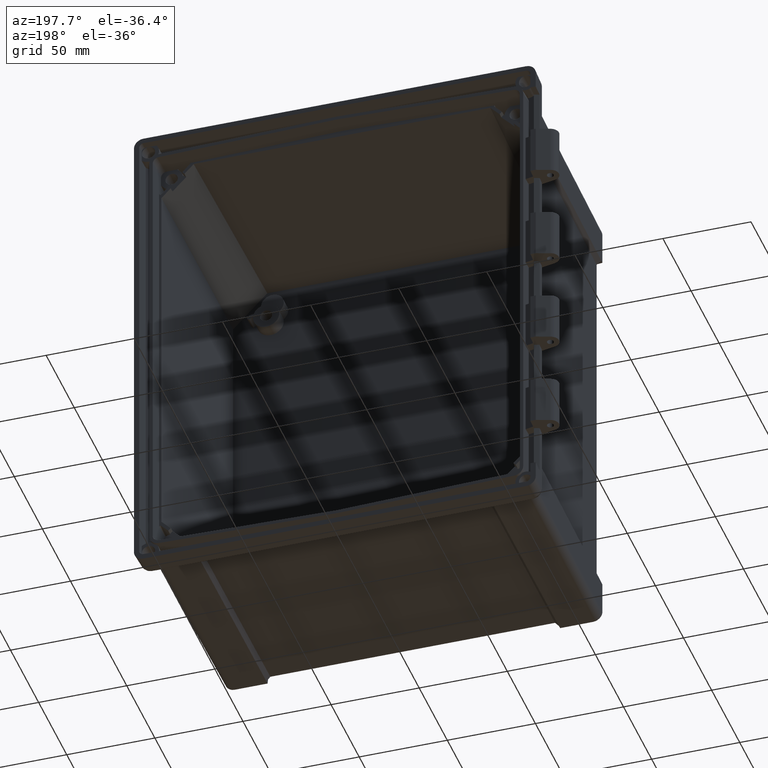
[diagram: clean part render]
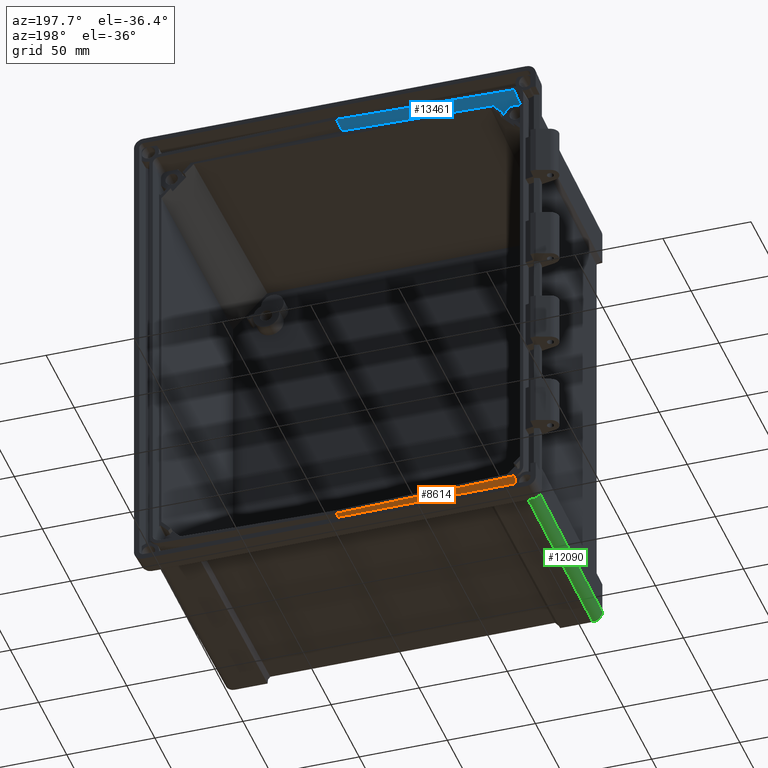
[diagram: same view with three faces highlighted in distinct colors, each labeled with its STEP entity id]
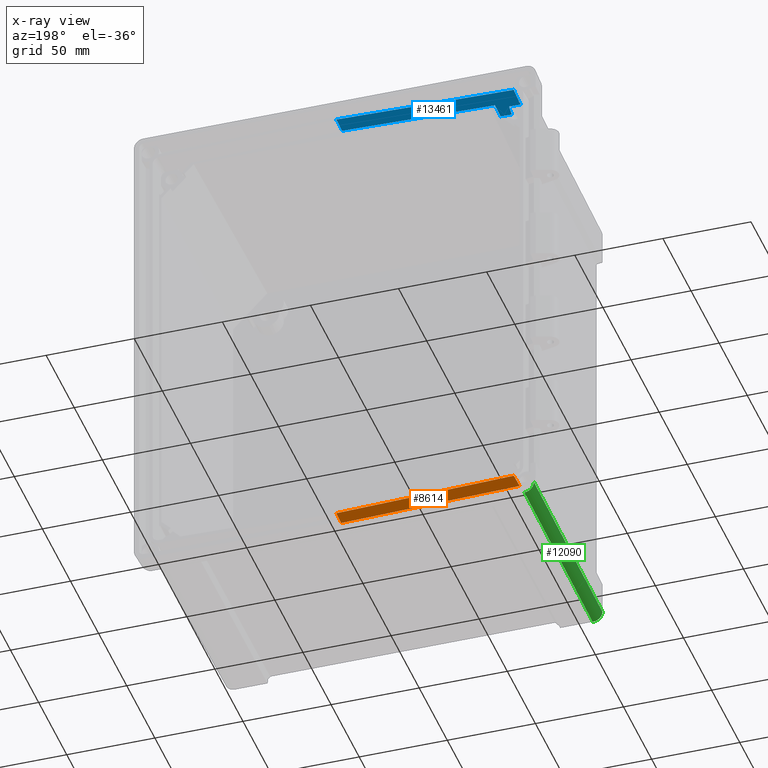
[diagram: x-ray of the same camera — body ghosted, the three highlighted faces saturated]
A machine part, auxiliary view with three faces highlighted in distinct colors.
The next image is the same camera in x-ray (body ghosted, the three faces saturated) — at least one of them is partly hidden behind the body in this view.
Their STEP definitions:

[orange] entity #8614 — the highlighted planar face has unit normal (0.0262, -0.0349, 0.999).
#616=DIRECTION('',(2.723803751602E-9,-9.993904096062E-1,-3.491144779595E-2));
#617=VECTOR('',#616,8.901917632113E0);
#618=CARTESIAN_POINT('',(0.E0,-2.500000001275E0,-1.332099393391E2));
#619=LINE('',#618,#617);
#620=DIRECTION('',(9.996573249814E-1,7.973144582753E-13,-2.617694808592E-2));
#621=VECTOR('',#620,1.007935563406E2);
#622=CARTESIAN_POINT('',(-1.007590169068E2,-2.500000001355E0,
-1.305714716473E2));
#623=LINE('',#622,#621);
#624=DIRECTION('',(3.487934252031E-2,9.988137614788E-1,3.397795382151E-2));
#625=VECTOR('',#624,9.426022756493E0);
#626=CARTESIAN_POINT('',(-1.010877903831E2,-1.191484124655E1,
-1.308917486133E2));
#627=LINE('',#626,#625);
#628=CARTESIAN_POINT('',(-9.926258086126E1,-1.194491344930E1,
-1.309405939103E2));
#629=CARTESIAN_POINT('',(-9.987121601566E1,-1.194827613766E1,
-1.309247737058E2));
#630=CARTESIAN_POINT('',(-1.004796177273E2,-1.193816806697E1,
-1.309084890437E2));
#631=CARTESIAN_POINT('',(-1.010877903633E2,-1.191484124814E1,
-1.308917486130E2));
#633=CARTESIAN_POINT('',(-1.010877903831E2,-1.191484124655E1,
-1.308917486133E2));
#655=DIRECTION('',(-9.996471083360E-1,-5.523015836494E-3,2.598374668104E-2));
#656=VECTOR('',#655,9.929762219294E1);
#657=CARTESIAN_POINT('',(2.424707427432E-8,-1.139649110991E1,
-1.335207181718E2));
#658=LINE('',#657,#656);
#6869=CARTESIAN_POINT('',(-9.926258086556E1,-1.194491344981E1,
-1.309405939107E2));
#6870=VERTEX_POINT('',#6869);
#6871=CARTESIAN_POINT('',(2.424707427432E-8,-1.139649110991E1,
-1.335207181718E2));
#6872=VERTEX_POINT('',#6871);
#6892=VERTEX_POINT('',#633);
#6893=CARTESIAN_POINT('',(-1.007590169068E2,-2.500000001355E0,
-1.305714716473E2));
#6894=VERTEX_POINT('',#6893);
#7530=CARTESIAN_POINT('',(0.E0,-2.500000001275E0,-1.332099393391E2));
#7531=VERTEX_POINT('',#7530);
#8598=CARTESIAN_POINT('',(-5.054389518166E1,-7.177549736724E0,
-1.320498005152E2));
#8599=DIRECTION('',(2.616100201753E-2,-3.489949666754E-2,9.990483607443E-1));
#8600=DIRECTION('',(0.E0,9.993904096908E-1,3.491144537447E-2));
#8601=AXIS2_PLACEMENT_3D('',#8598,#8599,#8600);
#8602=PLANE('',#8601);
#8604=ORIENTED_EDGE('',*,*,#8603,.F.);
#8606=ORIENTED_EDGE('',*,*,#8605,.F.);
#8608=ORIENTED_EDGE('',*,*,#8607,.F.);
#8609=ORIENTED_EDGE('',*,*,#8556,.F.);
#8611=ORIENTED_EDGE('',*,*,#8610,.F.);
#8612=EDGE_LOOP('',(#8604,#8606,#8608,#8609,#8611));
#8613=FACE_OUTER_BOUND('',#8612,.F.);
#8614=ADVANCED_FACE('',(#8613),#8602,.F.);
#632=B_SPLINE_CURVE_WITH_KNOTS('',3,(#628,#629,#630,#631),.UNSPECIFIED.,.F.,.F.,
(4,4),(0.E0,1.E0),.UNSPECIFIED.);
#8556=EDGE_CURVE('',#6894,#7531,#623,.T.);
#8603=EDGE_CURVE('',#6870,#6892,#632,.T.);
#8605=EDGE_CURVE('',#6872,#6870,#658,.T.);
#8607=EDGE_CURVE('',#7531,#6872,#619,.T.);
#8610=EDGE_CURVE('',#6892,#6894,#627,.T.);

[blue] entity #13461 — the highlighted planar face has unit normal (-0.0262, -0.0349, 0.999).
#132=CARTESIAN_POINT('',(-9.380620497327E1,-1.579291337355E1,1.283234267013E2));
#140=DIRECTION('',(9.996573249694E-1,2.172552365532E-8,2.617694854226E-2));
#141=VECTOR('',#140,6.575087803178E0);
#142=CARTESIAN_POINT('',(-1.003790396580E2,-1.579291351640E1,1.281513109662E2));
#143=LINE('',#142,#141);
#4088=DIRECTION('',(0.E0,-9.993904095744E-1,-3.491144870547E-2));
#4089=VECTOR('',#4088,1.029919180384E1);
#4090=CARTESIAN_POINT('',(0.E0,-2.500000003583E0,1.312441865493E2));
#4091=LINE('',#4090,#4089);
#4092=DIRECTION('',(9.996573249723E-1,-7.220518766977E-11,2.617694843117E-2));
#4093=VECTOR('',#4092,1.007749303408E2);
#4094=CARTESIAN_POINT('',(-1.007403972888E2,-2.499999996307E0,
1.286062063946E2));
#4095=LINE('',#4094,#4093);
#4096=DIRECTION('',(-3.483954943931E-2,9.988151131685E-1,3.397904502793E-2));
#4097=VECTOR('',#4096,1.030512094303E1);
#4098=CARTESIAN_POINT('',(-1.003813715182E2,-1.279291053724E1,
1.282560482261E2));
#4099=LINE('',#4098,#4097);
#4100=CARTESIAN_POINT('',(-9.308521140364E1,-2.300000008159E1,
1.280905432967E2));
#4101=CARTESIAN_POINT('',(-9.319675524834E1,-2.179400718940E1,
1.281297510538E2));
#4102=CARTESIAN_POINT('',(-9.342678662541E1,-1.939050675889E1,
1.282076883271E2));
#4103=CARTESIAN_POINT('',(-9.367590242445E1,-1.698895228498E1,
1.282850578771E2));
#4104=CARTESIAN_POINT('',(-9.380620497327E1,-1.579291337355E1,
1.283234267013E2));
#4110=CARTESIAN_POINT('',(-8.672170865315E1,-2.300000415971E1,
1.282565772160E2));
#4117=DIRECTION('',(9.996597881007E-1,-6.406429501203E-7,2.608271561836E-2));
#4118=VECTOR('',#4117,6.365668426633E0);
#4119=CARTESIAN_POINT('',(-9.308521140364E1,-2.300000008159E1,
1.280905432967E2));
#4120=LINE('',#4119,#4118);
#5046=DIRECTION('',(9.996573249761E-1,3.238315844617E-11,2.617694828693E-2));
#5047=VECTOR('',#5046,8.681001276172E1);
#5048=CARTESIAN_POINT('',(-8.678026513852E1,-1.279291352152E1,
1.286122056281E2));
#5049=LINE('',#5048,#5047);
#5135=DIRECTION('',(5.733270782894E-3,-9.993771682225E-1,-3.481961001799E-2));
#5136=VECTOR('',#5135,1.021345190059E1);
#5137=CARTESIAN_POINT('',(-8.678026513852E1,-1.279291352152E1,
1.286122056281E2));
#5138=LINE('',#5137,#5136);
#5988=DIRECTION('',(-7.768124435860E-4,9.993908176974E-1,3.489111727151E-2));
#5989=VECTOR('',#5988,3.001831641875E0);
#5990=CARTESIAN_POINT('',(-1.003790396580E2,-1.579291351640E1,
1.281513109662E2));
#5991=LINE('',#5990,#5989);
#6699=CARTESIAN_POINT('',(0.E0,-1.279291351871E1,1.308846268429E2));
#6700=VERTEX_POINT('',#6699);
#6701=CARTESIAN_POINT('',(-8.678026513852E1,-1.279291352152E1,
1.286122056281E2));
#6702=VERTEX_POINT('',#6701);
#7009=VERTEX_POINT('',#132);
#7010=CARTESIAN_POINT('',(-1.003790396580E2,-1.579291351640E1,
1.281513109662E2));
#7011=VERTEX_POINT('',#7010);
#7134=CARTESIAN_POINT('',(0.E0,-2.500000003583E0,1.312441865493E2));
#7135=VERTEX_POINT('',#7134);
#7176=VERTEX_POINT('',#4110);
#7177=CARTESIAN_POINT('',(-9.308521140364E1,-2.300000008159E1,
1.280905432967E2));
#7178=VERTEX_POINT('',#7177);
#7183=CARTESIAN_POINT('',(-1.007403972888E2,-2.499999996307E0,
1.286062063946E2));
#7184=VERTEX_POINT('',#7183);
#7185=CARTESIAN_POINT('',(-1.003813715182E2,-1.279291053724E1,
1.282560482261E2));
#7186=VERTEX_POINT('',#7185);
#13438=CARTESIAN_POINT('',(-5.037019864096E1,-1.274650299219E1,
1.295672580195E2));
#13439=DIRECTION('',(-2.616100201806E-2,-3.489949668676E-2,9.990483607436E-1));
#13440=DIRECTION('',(0.E0,9.993904096901E-1,3.491144539370E-2));
#13441=AXIS2_PLACEMENT_3D('',#13438,#13439,#13440);
#13442=PLANE('',#13441);
#13444=ORIENTED_EDGE('',*,*,#13443,.T.);
#13446=ORIENTED_EDGE('',*,*,#13445,.F.);
#13448=ORIENTED_EDGE('',*,*,#13447,.T.);
#13450=ORIENTED_EDGE('',*,*,#13449,.F.);
#13451=ORIENTED_EDGE('',*,*,#8578,.F.);
#13453=ORIENTED_EDGE('',*,*,#13452,.F.);
#13455=ORIENTED_EDGE('',*,*,#13454,.F.);
#13456=ORIENTED_EDGE('',*,*,#7757,.T.);
#13458=ORIENTED_EDGE('',*,*,#13457,.F.);
#13459=EDGE_LOOP('',(#13444,#13446,#13448,#13450,#13451,#13453,#13455,#13456,
#13458));
#13460=FACE_OUTER_BOUND('',#13459,.F.);
#13461=ADVANCED_FACE('',(#13460),#13442,.F.);
#4105=B_SPLINE_CURVE_WITH_KNOTS('',3,(#4100,#4101,#4102,#4103,#4104),
.UNSPECIFIED.,.F.,.F.,(4,1,4),(0.E0,5.016394847961E-1,1.E0),.UNSPECIFIED.);
#7757=EDGE_CURVE('',#7011,#7009,#143,.T.);
#8578=EDGE_CURVE('',#7184,#7135,#4095,.T.);
#13443=EDGE_CURVE('',#7178,#7176,#4120,.T.);
#13445=EDGE_CURVE('',#6702,#7176,#5138,.T.);
#13447=EDGE_CURVE('',#6702,#6700,#5049,.T.);
#13449=EDGE_CURVE('',#7135,#6700,#4091,.T.);
#13452=EDGE_CURVE('',#7186,#7184,#4099,.T.);
#13454=EDGE_CURVE('',#7011,#7186,#5991,.T.);
#13457=EDGE_CURVE('',#7178,#7009,#4105,.T.);

[green] entity #12090 — the highlighted cylindrical surface (edge-blend (fillet) strip) has radius 5.5 mm, axis along (-0.0087, 0.9999, -0.0087).
#2149=CARTESIAN_POINT('',(-1.025979121201E2,-1.553623605673E1,
-1.330977027007E2));
#2156=DIRECTION('',(-8.726203210035E-3,9.999238504777E-1,-8.726203260746E-3));
#2157=VECTOR('',#2156,1.249732805884E2);
#2158=CARTESIAN_POINT('',(-1.015073698779E2,-1.404999999895E2,
-1.320071604521E2));
#2159=LINE('',#2158,#2157);
#2189=CARTESIAN_POINT('',(-1.070071604521E2,-1.405E2,-1.265073698854E2));
#2190=CARTESIAN_POINT('',(-1.070071604504E2,-1.405E2,-1.274240016448E2));
#2191=CARTESIAN_POINT('',(-1.066093016925E2,-1.405E2,-1.288594064092E2));
#2192=CARTESIAN_POINT('',(-1.054773247127E2,-1.405E2,-1.304773247127E2));
#2193=CARTESIAN_POINT('',(-1.038594064092E2,-1.405E2,-1.316093016925E2));
#2194=CARTESIAN_POINT('',(-1.024240016448E2,-1.405E2,-1.320071604504E2));
#2195=CARTESIAN_POINT('',(-1.015073698854E2,-1.405E2,-1.320071604521E2));
#2924=CARTESIAN_POINT('',(-1.078261217611E2,-1.520838139088E1,
-1.293164619317E2));
#2925=CARTESIAN_POINT('',(-1.078870035445E2,-1.519544056831E1,
-1.291314876350E2));
#2926=CARTESIAN_POINT('',(-1.079883841777E2,-1.517389144933E1,
-1.287576903426E2));
#2927=CARTESIAN_POINT('',(-1.080806775899E2,-1.515427386832E1,
-1.281811936742E2));
#2928=CARTESIAN_POINT('',(-1.081010738651E2,-1.514993853475E1,
-1.277953410073E2));
#2929=CARTESIAN_POINT('',(-1.081010738651E2,-1.514993853475E1,
-1.276012833148E2));
#2978=DIRECTION('',(8.726203236471E-3,-9.999238504760E-1,8.726203429091E-3));
#2979=VECTOR('',#2978,1.253596075292E2);
#2980=CARTESIAN_POINT('',(-1.081010738651E2,-1.514993853475E1,
-1.276012833148E2));
#2981=LINE('',#2980,#2979);
#2998=CARTESIAN_POINT('',(-1.078261217611E2,-1.520838139088E1,
-1.293164619317E2));
#2999=CARTESIAN_POINT('',(-1.077447054052E2,-1.522568697158E1,
-1.295638254664E2));
#3000=CARTESIAN_POINT('',(-1.075367581836E2,-1.526361426564E1,
-1.300782384055E2));
#3001=CARTESIAN_POINT('',(-1.070541763754E2,-1.532529163639E1,
-1.308727818230E2));
#3002=CARTESIAN_POINT('',(-1.063776855489E2,-1.538521283817E1,
-1.316493241475E2));
#3003=CARTESIAN_POINT('',(-1.054135128752E2,-1.543952412897E1,
-1.323726692554E2));
#3004=CARTESIAN_POINT('',(-1.044270705815E2,-1.547535452311E1,
-1.328157503147E2));
#3005=CARTESIAN_POINT('',(-1.035327886250E2,-1.550307941593E1,
-1.330438789958E2));
#3006=CARTESIAN_POINT('',(-1.029054089182E2,-1.552416092802E1,
-1.330978080786E2));
#3007=CARTESIAN_POINT('',(-1.025979121201E2,-1.553623605673E1,
-1.330977027007E2));
#6836=CARTESIAN_POINT('',(-1.015073698779E2,-1.404999999895E2,
-1.320071604521E2));
#6837=VERTEX_POINT('',#6836);
#6838=VERTEX_POINT('',#2189);
#7460=CARTESIAN_POINT('',(-1.081010738651E2,-1.514993853475E1,
-1.276012833148E2));
#7461=VERTEX_POINT('',#7460);
#7462=VERTEX_POINT('',#2924);
#7516=VERTEX_POINT('',#2149);
#12077=CARTESIAN_POINT('',(-1.015008063450E2,-1.412041100882E2,
-1.265008063450E2));
#12078=DIRECTION('',(-8.726203243996E-3,9.999238504776E-1,-8.726203243996E-3));
#12079=DIRECTION('',(1.871890255172E-11,8.726535498589E-3,9.999619230642E-1));
#12080=AXIS2_PLACEMENT_3D('',#12077,#12078,#12079);
#12081=CYLINDRICAL_SURFACE('',#12080,5.500000000379E0);
#12082=ORIENTED_EDGE('',*,*,#11156,.T.);
#12083=ORIENTED_EDGE('',*,*,#11127,.T.);
#12085=ORIENTED_EDGE('',*,*,#12084,.F.);
#12086=ORIENTED_EDGE('',*,*,#11997,.T.);
#12087=ORIENTED_EDGE('',*,*,#12047,.T.);
#12088=EDGE_LOOP('',(#12082,#12083,#12085,#12086,#12087));
#12089=FACE_OUTER_BOUND('',#12088,.F.);
#12090=ADVANCED_FACE('',(#12089),#12081,.T.);
#2196=B_SPLINE_CURVE_WITH_KNOTS('',3,(#2189,#2190,#2191,#2192,#2193,#2194,
#2195),.UNSPECIFIED.,.F.,.F.,(4,1,1,1,4),(0.E0,2.5E-1,5.E-1,7.5E-1,1.E0),
.UNSPECIFIED.);
#2930=B_SPLINE_CURVE_WITH_KNOTS('',3,(#2924,#2925,#2926,#2927,#2928,#2929),
.UNSPECIFIED.,.F.,.F.,(4,1,1,4),(0.E0,3.333333333333E-1,6.666666666667E-1,1.E0),
.UNSPECIFIED.);
#3008=B_SPLINE_CURVE_WITH_KNOTS('',3,(#2998,#2999,#3000,#3001,#3002,#3003,#3004,
#3005,#3006,#3007),.UNSPECIFIED.,.F.,.F.,(4,1,1,1,1,1,1,4),(0.E0,
1.428571428571E-1,2.857142857143E-1,4.285714285714E-1,5.714285714286E-1,
7.142857142857E-1,8.571428571429E-1,1.E0),.UNSPECIFIED.);
#11127=EDGE_CURVE('',#6837,#7516,#2159,.T.);
#11156=EDGE_CURVE('',#6838,#6837,#2196,.T.);
#11997=EDGE_CURVE('',#7462,#7461,#2930,.T.);
#12047=EDGE_CURVE('',#7461,#6838,#2981,.T.);
#12084=EDGE_CURVE('',#7462,#7516,#3008,.T.);